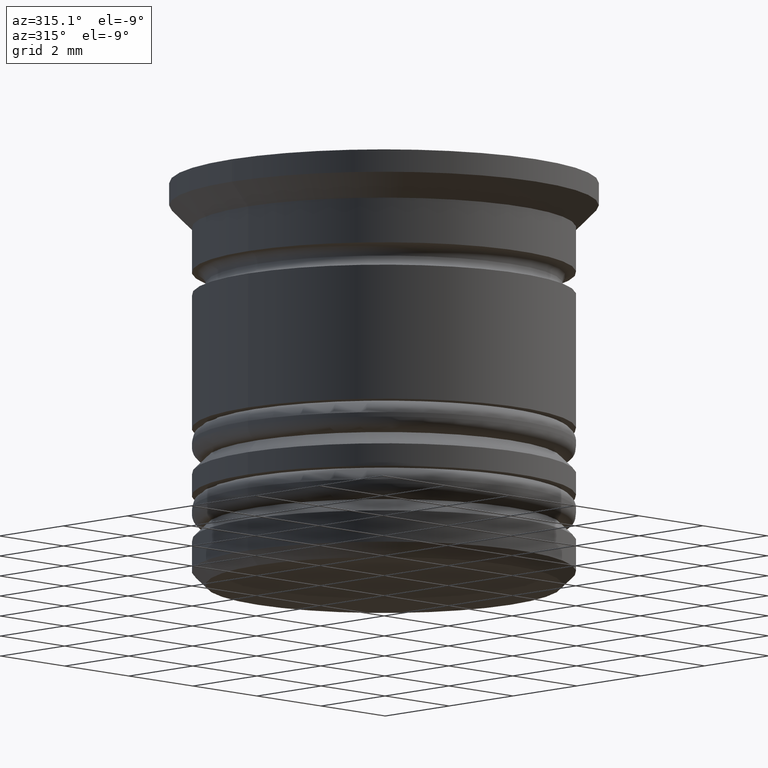
[diagram: clean part render]
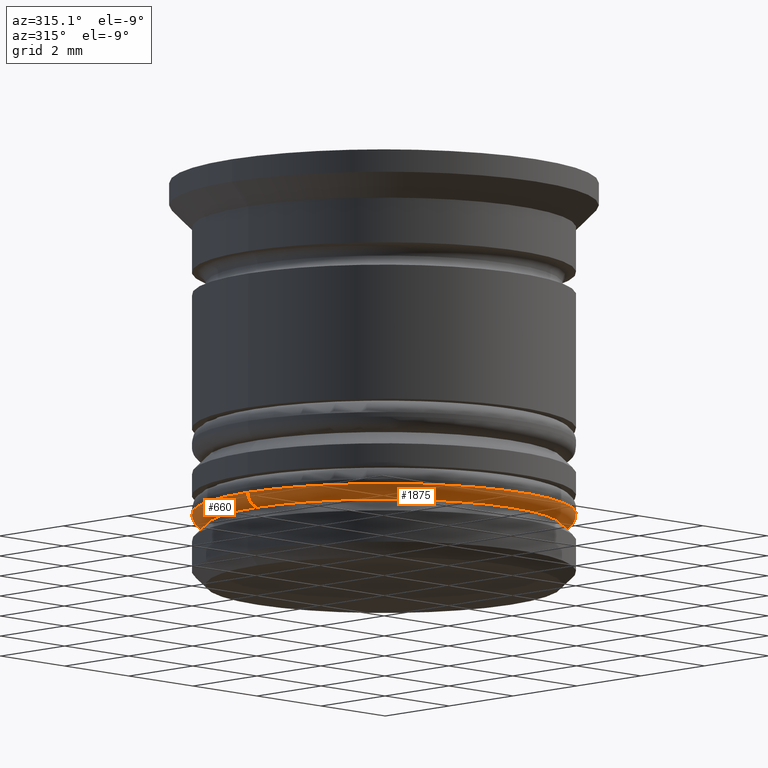
[diagram: same view with one multi-face feature highlighted, each face labeled with its STEP entity id]
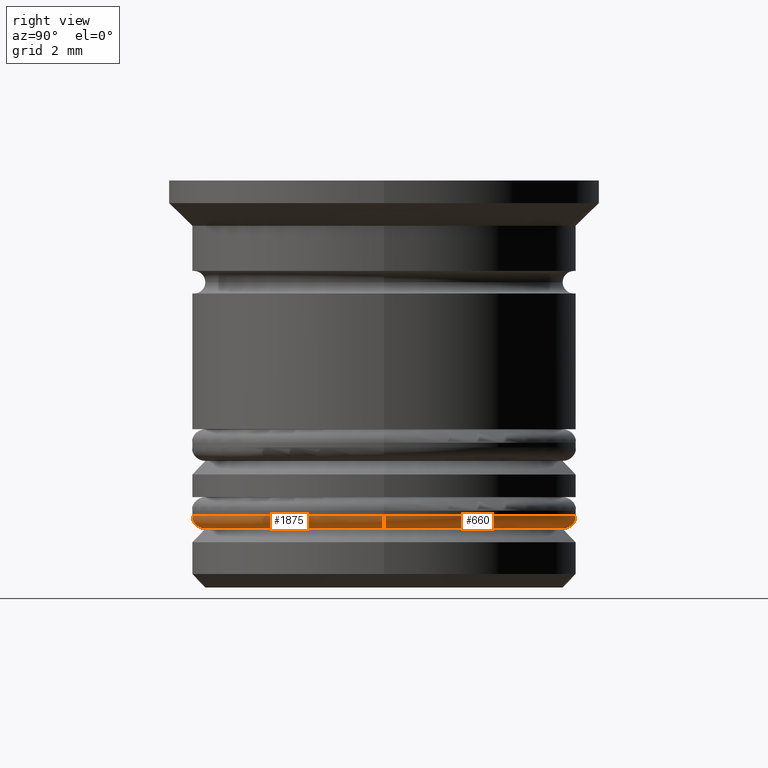
[diagram: same view with one multi-face feature highlighted, each face labeled with its STEP entity id]
A machine part, auxiliary view. The highlighted faces form ONE feature: a constant-radius fillet chain: 2 tangent blend faces with common blend radius 0.3 mm. The faces share edges in the B-rep.
A second angle (right view) of the same feature is appended — it is thin or edge-on in the first view.
Their STEP definitions:
[1] entity #660 (Torus):
#59 = CARTESIAN_POINT ( 'NONE',  ( 0.000000000000000000, 0.000000000000000000, -7.400000000000005684 ) ) ;
#194 = DIRECTION ( 'NONE',  ( 0.000000000000000000, -1.000000000000000000, 0.000000000000000000 ) ) ;
#203 = DIRECTION ( 'NONE',  ( 1.224646799147353207E-16, 1.000000000000000000, -0.000000000000000000 ) ) ;
#318 = AXIS2_PLACEMENT_3D ( 'NONE', #865, #1349, #581 ) ;
#325 = ORIENTED_EDGE ( 'NONE', *, *, #646, .T. ) ;
#337 = CIRCLE ( 'NONE', #907, 0.2999999999999999334 ) ;
#581 = DIRECTION ( 'NONE',  ( 1.000000000000000000, 0.000000000000000000, 0.000000000000000000 ) ) ;
#588 = DIRECTION ( 'NONE',  ( 1.000000000000000000, 0.000000000000000000, 0.000000000000000000 ) ) ;
#646 = EDGE_CURVE ( 'NONE', #1739, #1148, #337, .T. ) ;
#660 = ADVANCED_FACE ( 'NONE', ( #1850 ), #1830, .T. ) ;
#709 = ORIENTED_EDGE ( 'NONE', *, *, #1623, .F. ) ;
#795 = CARTESIAN_POINT ( 'NONE',  ( 4.250000000000000000, 0.000000000000000000, -7.400000000000005684 ) ) ;
#812 = EDGE_LOOP ( 'NONE', ( #1663, #325, #709, #1129 ) ) ;
#839 = VERTEX_POINT ( 'NONE', #1783 ) ;
#865 = CARTESIAN_POINT ( 'NONE',  ( 0.000000000000000000, 0.000000000000000000, -7.400000000000005684 ) ) ;
#907 = AXIS2_PLACEMENT_3D ( 'NONE', #1206, #203, #1677 ) ;
#1057 = DIRECTION ( 'NONE',  ( 0.000000000000000000, 0.000000000000000000, 1.000000000000000000 ) ) ;
#1129 = ORIENTED_EDGE ( 'NONE', *, *, #1484, .F. ) ;
#1148 = VERTEX_POINT ( 'NONE', #1195 ) ;
#1178 = CIRCLE ( 'NONE', #318, 4.250000000000000000 ) ;
#1194 = CARTESIAN_POINT ( 'NONE',  ( 0.000000000000000000, 0.000000000000000000, -7.700000000000005507 ) ) ;
#1195 = CARTESIAN_POINT ( 'NONE',  ( -4.250000000000000000, 5.204748896376250699E-16, -7.400000000000005684 ) ) ;
#1206 = CARTESIAN_POINT ( 'NONE',  ( -3.950000000000000178, 4.837354856632045057E-16, -7.400000000000005684 ) ) ;
#1227 = CARTESIAN_POINT ( 'NONE',  ( -3.950000000000000178, 5.021051876504148371E-16, -7.700000000000005507 ) ) ;
#1301 = CARTESIAN_POINT ( 'NONE',  ( 3.950000000000000178, 0.000000000000000000, -7.400000000000005684 ) ) ;
#1349 = DIRECTION ( 'NONE',  ( 0.000000000000000000, 0.000000000000000000, 1.000000000000000000 ) ) ;
#1360 = CIRCLE ( 'NONE', #1630, 0.2999999999999999334 ) ;
#1373 = CIRCLE ( 'NONE', #1439, 3.950000000000000178 ) ;
#1439 = AXIS2_PLACEMENT_3D ( 'NONE', #1194, #1987, #588 ) ;
#1484 = EDGE_CURVE ( 'NONE', #839, #1711, #1360, .T. ) ;
#1623 = EDGE_CURVE ( 'NONE', #1711, #1148, #1178, .T. ) ;
#1630 = AXIS2_PLACEMENT_3D ( 'NONE', #1301, #194, #1945 ) ;
#1663 = ORIENTED_EDGE ( 'NONE', *, *, #2019, .F. ) ;
#1677 = DIRECTION ( 'NONE',  ( -1.000000000000000000, 1.224646799147353207E-16, 0.000000000000000000 ) ) ;
#1685 = DIRECTION ( 'NONE',  ( 1.000000000000000000, 0.000000000000000000, 0.000000000000000000 ) ) ;
#1711 = VERTEX_POINT ( 'NONE', #795 ) ;
#1739 = VERTEX_POINT ( 'NONE', #1227 ) ;
#1783 = CARTESIAN_POINT ( 'NONE',  ( 3.950000000000000178, 0.000000000000000000, -7.700000000000005507 ) ) ;
#1794 = AXIS2_PLACEMENT_3D ( 'NONE', #59, #1057, #1685 ) ;
#1830 = TOROIDAL_SURFACE ( 'NONE', #1794, 3.950000000000000178, 0.2999999999999999889 ) ;
#1850 = FACE_OUTER_BOUND ( 'NONE', #812, .T. ) ;
#1945 = DIRECTION ( 'NONE',  ( 0.000000000000000000, 0.000000000000000000, -1.000000000000000000 ) ) ;
#1987 = DIRECTION ( 'NONE',  ( -0.000000000000000000, -0.000000000000000000, -1.000000000000000000 ) ) ;
#2019 = EDGE_CURVE ( 'NONE', #1739, #839, #1373, .T. ) ;
[2] entity #1875 (Torus):
#150 = DIRECTION ( 'NONE',  ( 1.000000000000000000, 0.000000000000000000, 0.000000000000000000 ) ) ;
#194 = DIRECTION ( 'NONE',  ( 0.000000000000000000, -1.000000000000000000, 0.000000000000000000 ) ) ;
#203 = DIRECTION ( 'NONE',  ( 1.224646799147353207E-16, 1.000000000000000000, -0.000000000000000000 ) ) ;
#337 = CIRCLE ( 'NONE', #907, 0.2999999999999999334 ) ;
#399 = CARTESIAN_POINT ( 'NONE',  ( 0.000000000000000000, 0.000000000000000000, -7.700000000000005507 ) ) ;
#400 = DIRECTION ( 'NONE',  ( 1.000000000000000000, 0.000000000000000000, 0.000000000000000000 ) ) ;
#568 = DIRECTION ( 'NONE',  ( 1.000000000000000000, 0.000000000000000000, 0.000000000000000000 ) ) ;
#589 = DIRECTION ( 'NONE',  ( 0.000000000000000000, 0.000000000000000000, 1.000000000000000000 ) ) ;
#639 = AXIS2_PLACEMENT_3D ( 'NONE', #1359, #589, #150 ) ;
#646 = EDGE_CURVE ( 'NONE', #1739, #1148, #337, .T. ) ;
#720 = ORIENTED_EDGE ( 'NONE', *, *, #1484, .T. ) ;
#750 = CIRCLE ( 'NONE', #1905, 3.950000000000000178 ) ;
#767 = CARTESIAN_POINT ( 'NONE',  ( 0.000000000000000000, 0.000000000000000000, -7.400000000000005684 ) ) ;
#795 = CARTESIAN_POINT ( 'NONE',  ( 4.250000000000000000, 0.000000000000000000, -7.400000000000005684 ) ) ;
#803 = EDGE_LOOP ( 'NONE', ( #1873, #1465, #720, #1250 ) ) ;
#839 = VERTEX_POINT ( 'NONE', #1783 ) ;
#907 = AXIS2_PLACEMENT_3D ( 'NONE', #1206, #203, #1677 ) ;
#1148 = VERTEX_POINT ( 'NONE', #1195 ) ;
#1168 = EDGE_CURVE ( 'NONE', #1148, #1711, #1324, .T. ) ;
#1173 = DIRECTION ( 'NONE',  ( -0.000000000000000000, -0.000000000000000000, -1.000000000000000000 ) ) ;
#1195 = CARTESIAN_POINT ( 'NONE',  ( -4.250000000000000000, 5.204748896376250699E-16, -7.400000000000005684 ) ) ;
#1206 = CARTESIAN_POINT ( 'NONE',  ( -3.950000000000000178, 4.837354856632045057E-16, -7.400000000000005684 ) ) ;
#1227 = CARTESIAN_POINT ( 'NONE',  ( -3.950000000000000178, 5.021051876504148371E-16, -7.700000000000005507 ) ) ;
#1250 = ORIENTED_EDGE ( 'NONE', *, *, #1168, .F. ) ;
#1270 = AXIS2_PLACEMENT_3D ( 'NONE', #767, #1862, #400 ) ;
#1301 = CARTESIAN_POINT ( 'NONE',  ( 3.950000000000000178, 0.000000000000000000, -7.400000000000005684 ) ) ;
#1324 = CIRCLE ( 'NONE', #639, 4.250000000000000000 ) ;
#1359 = CARTESIAN_POINT ( 'NONE',  ( 0.000000000000000000, 0.000000000000000000, -7.400000000000005684 ) ) ;
#1360 = CIRCLE ( 'NONE', #1630, 0.2999999999999999334 ) ;
#1465 = ORIENTED_EDGE ( 'NONE', *, *, #1583, .F. ) ;
#1484 = EDGE_CURVE ( 'NONE', #839, #1711, #1360, .T. ) ;
#1504 = FACE_OUTER_BOUND ( 'NONE', #803, .T. ) ;
#1583 = EDGE_CURVE ( 'NONE', #839, #1739, #750, .T. ) ;
#1630 = AXIS2_PLACEMENT_3D ( 'NONE', #1301, #194, #1945 ) ;
#1677 = DIRECTION ( 'NONE',  ( -1.000000000000000000, 1.224646799147353207E-16, 0.000000000000000000 ) ) ;
#1711 = VERTEX_POINT ( 'NONE', #795 ) ;
#1739 = VERTEX_POINT ( 'NONE', #1227 ) ;
#1783 = CARTESIAN_POINT ( 'NONE',  ( 3.950000000000000178, 0.000000000000000000, -7.700000000000005507 ) ) ;
#1847 = TOROIDAL_SURFACE ( 'NONE', #1270, 3.950000000000000178, 0.2999999999999999889 ) ;
#1862 = DIRECTION ( 'NONE',  ( 0.000000000000000000, 0.000000000000000000, 1.000000000000000000 ) ) ;
#1873 = ORIENTED_EDGE ( 'NONE', *, *, #646, .F. ) ;
#1875 = ADVANCED_FACE ( 'NONE', ( #1504 ), #1847, .T. ) ;
#1905 = AXIS2_PLACEMENT_3D ( 'NONE', #399, #1173, #568 ) ;
#1945 = DIRECTION ( 'NONE',  ( 0.000000000000000000, 0.000000000000000000, -1.000000000000000000 ) ) ;